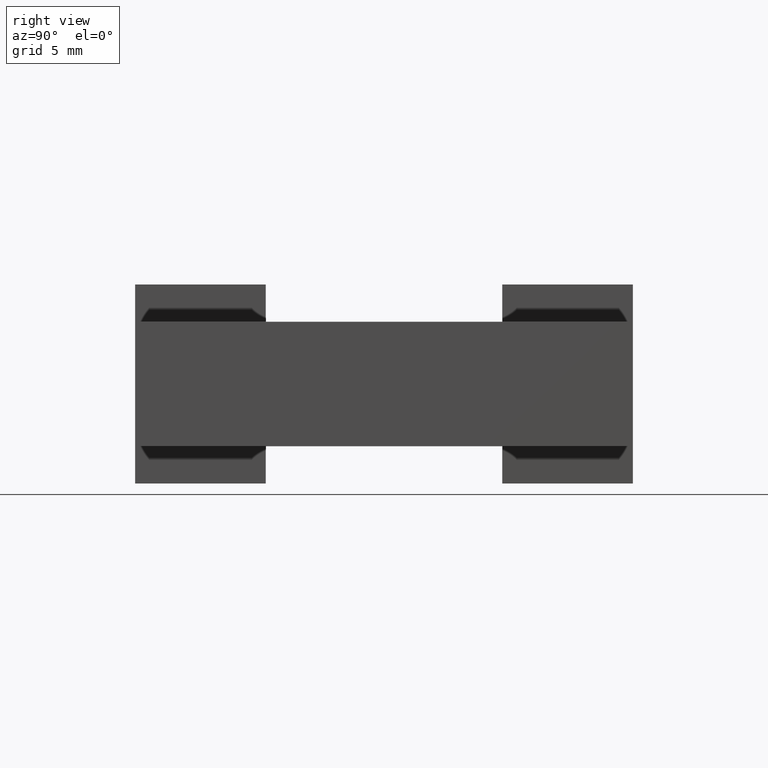
[diagram: clean part render]
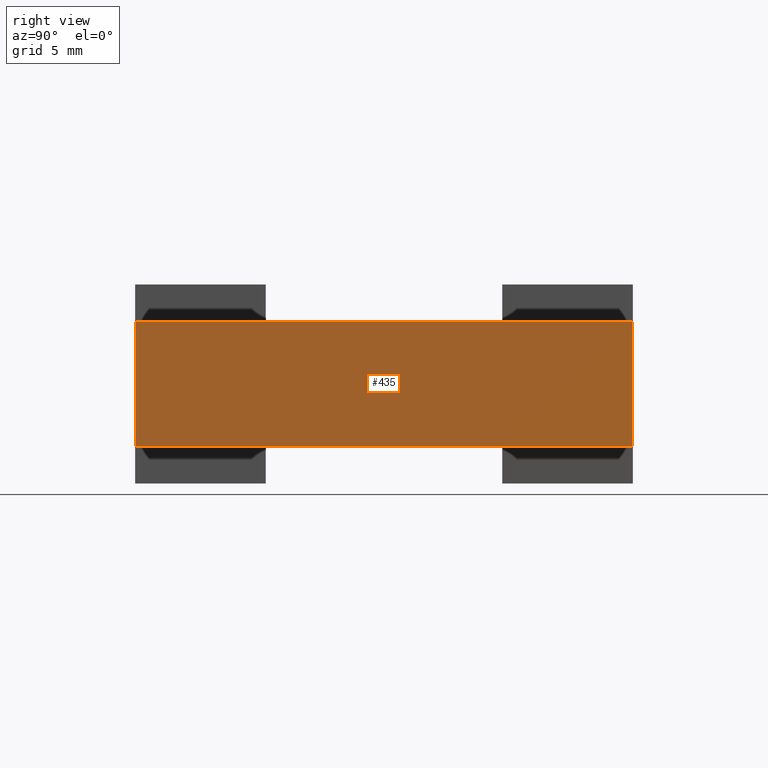
[diagram: same view with one face highlighted and labeled with its STEP entity id]
A machine part, right view. The second image highlights one B-rep face of the part: STEP entity #435.
In plain terms, the highlighted planar face has unit normal (-1, 0, 0).
Its self-contained STEP definition (entity closure, byte-faithful):
#302=CARTESIAN_POINT('',(19.999999999999993,40.0,3.0));
#303=VERTEX_POINT('',#302);
#310=CARTESIAN_POINT('',(19.999999999999993,0.0,3.0));
#311=VERTEX_POINT('',#310);
#312=CARTESIAN_POINT('',(19.999999999999993,0.0,3.0));
#313=DIRECTION('',(0.0,1.0,0.0));
#314=VECTOR('',#313,40.0);
#315=LINE('',#312,#314);
#316=EDGE_CURVE('',#311,#303,#315,.T.);
#385=CARTESIAN_POINT('',(19.999999999999993,0.0,13.0));
#386=VERTEX_POINT('',#385);
#387=CARTESIAN_POINT('',(19.999999999999993,0.0,13.0));
#388=DIRECTION('',(0.0,0.0,-1.0));
#389=VECTOR('',#388,10.0);
#390=LINE('',#387,#389);
#391=EDGE_CURVE('',#386,#311,#390,.T.);
#412=CARTESIAN_POINT('',(19.999999999999993,-2.0,2.500000000000000));
#413=DIRECTION('',(-1.0,0.0,0.0));
#414=DIRECTION('',(0.0,0.0,1.0));
#415=AXIS2_PLACEMENT_3D('',#412,#413,#414);
#416=PLANE('',#415);
#417=ORIENTED_EDGE('',*,*,#316,.T.);
#418=CARTESIAN_POINT('',(19.999999999999993,40.0,13.0));
#419=VERTEX_POINT('',#418);
#420=CARTESIAN_POINT('',(19.999999999999993,40.0,13.0));
#421=DIRECTION('',(0.0,0.0,-1.0));
#422=VECTOR('',#421,10.0);
#423=LINE('',#420,#422);
#424=EDGE_CURVE('',#419,#303,#423,.T.);
#425=ORIENTED_EDGE('',*,*,#424,.F.);
#426=CARTESIAN_POINT('',(19.999999999999993,0.0,13.0));
#427=DIRECTION('',(0.0,1.0,0.0));
#428=VECTOR('',#427,40.0);
#429=LINE('',#426,#428);
#430=EDGE_CURVE('',#386,#419,#429,.T.);
#431=ORIENTED_EDGE('',*,*,#430,.F.);
#432=ORIENTED_EDGE('',*,*,#391,.T.);
#433=EDGE_LOOP('',(#417,#425,#431,#432));
#434=FACE_OUTER_BOUND('',#433,.T.);
#435=ADVANCED_FACE('',(#434),#416,.F.);